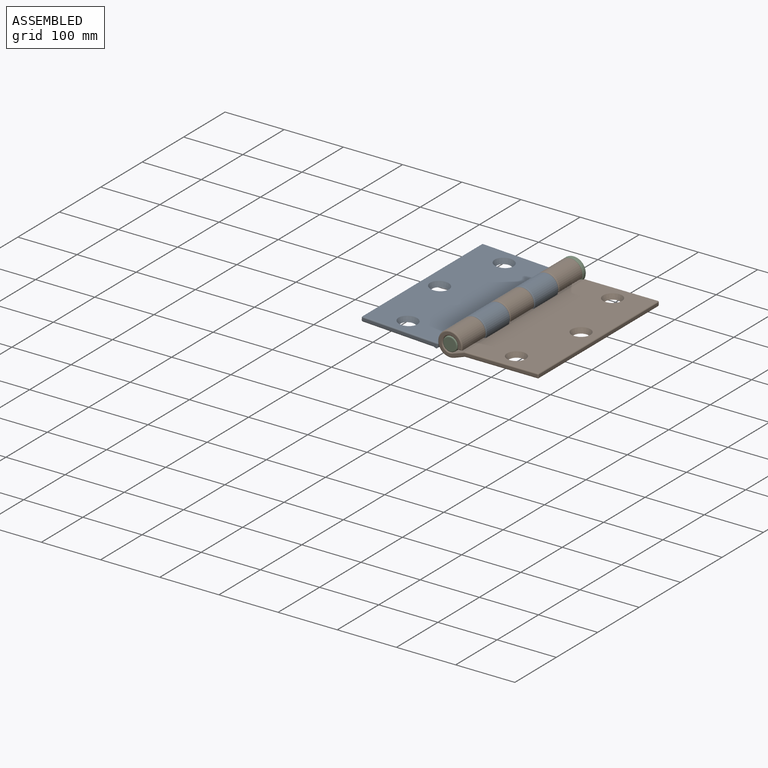
[diagram: assembled view]
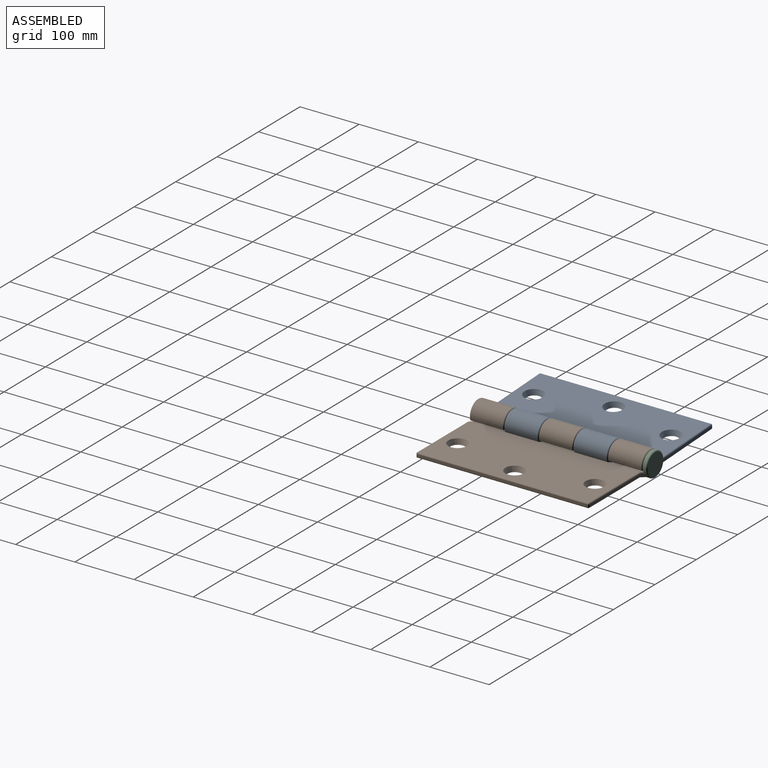
[diagram: assembled view, second angle]
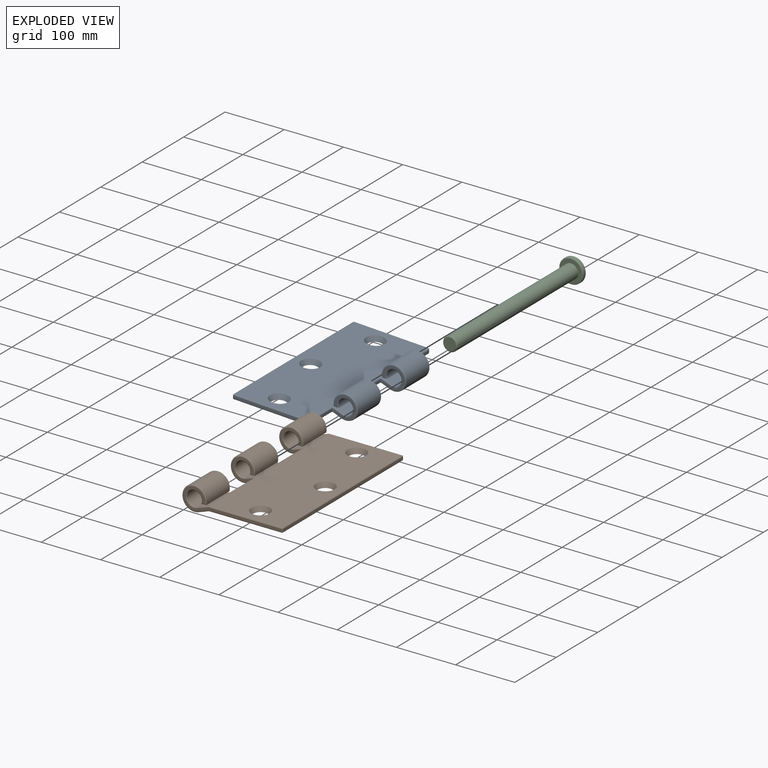
[diagram: exploded view]
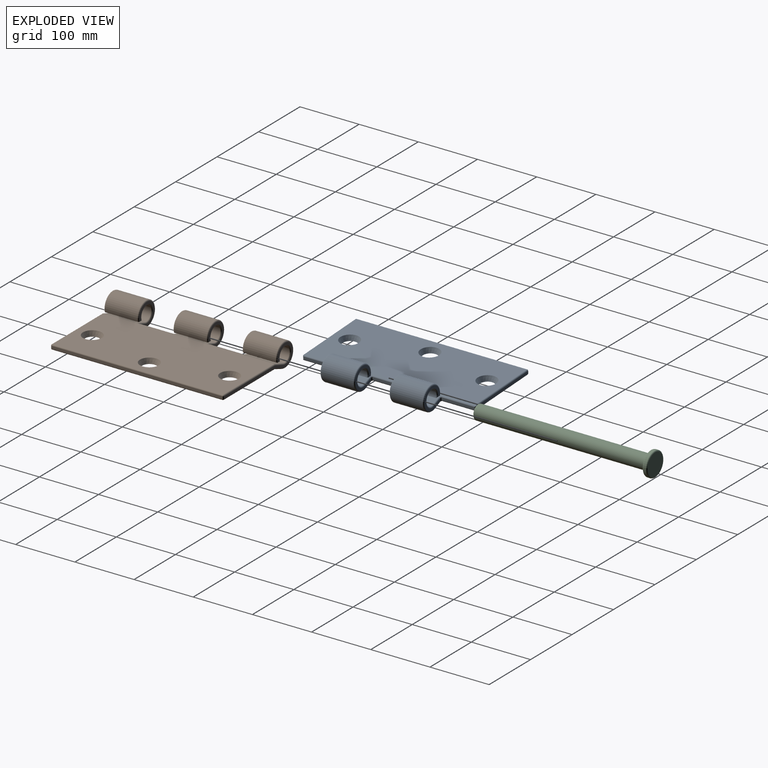
[diagram: exploded view, second angle]
ASSEMBLY  parts=3 mates=2
PART A: 74 faces, bbox 171.7x292x44.4 mm
  f0: cylinder r=12.5mm len=54.4mm, axis (0,1,0), area 3703.3mm2, adj f2,f6,f27,f61
  f1: cylinder r=12.5mm len=54.4mm, axis (0,1,0), area 3703.3mm2, adj f2,f7,f33,f43
  f2: plane 291.31x20.23mm, normal (0.32,0,0.95), area 2780.8mm2, adj f0,f1,f28,f29,f30,f31,f32,f46
  f3: plane 292x23.17mm, normal (-0.34,0,-0.94), area 2310.2mm2, adj f4,f5,f8,f9,f12,f35,f36,f37
  f4: cylinder r=20.5mm len=54.4mm, axis (0,1,0), area 5913.6mm2, adj f3,f6,f34,f54
  f5: cylinder r=20.5mm len=54.4mm, axis (0,1,0), area 5913.6mm2, adj f3,f7,f40,f42
  f6: plane 56.4x8.42mm, normal (0,0,-1), area 473.3mm2, adj f0,f4,f19,f27,f34,f55
  f7: plane 56.4x8.42mm, normal (0,0,-1), area 473.3mm2, adj f1,f5,f20,f33,f40,f41
  f8: plane 125x6.59mm, normal (0,-1,0), area 510.3mm2, adj f3,f45,f50,f51,f57,f62
  f9: plane 125x6.59mm, normal (0,1,0), area 510.3mm2, adj f3,f53,f64,f69,f71,f72
  f10: plane 288x122.68mm, normal (0,0,1), area 32917.7mm2, adj f13,f14,f15,f62,f63,f67,f71
  f11: plane 288x4mm, normal (-1,0,0), area 1152mm2, adj f51,f52,f63,f64
  f12: plane 288x123mm, normal (0,0,-1), area 34066.8mm2, adj f3,f13,f14,f15,f45,f52,f53
  f13: cone r=12mm half-angle=26.6deg, axis (0,0,1), area 786.8mm2, adj f10,f12
  f14: cone r=12mm half-angle=26.6deg, axis (0,0,1), area 786.8mm2, adj f10,f12
  f15: cone r=12mm half-angle=26.6deg, axis (0,0,1), area 786.8mm2, adj f10,f12
  f16: plane 37x37mm, normal (0,-1,0), area 398.4mm2, adj f23,f41,f42,f43,f44,f46
  f17: plane 54.4x3.82mm, normal (1,0,0), area 207.6mm2, adj f23,f50,f56,f57
  f18: plane 54.4x3.82mm, normal (1,0,0), area 207.6mm2, adj f24,f25,f30,f37
  f19: plane 37x37mm, normal (0,-1,0), area 406.7mm2, adj f6,f24,f27,f28,f34,f35
  f20: plane 37x37mm, normal (0,1,0), area 406.7mm2, adj f7,f25,f32,f33,f39,f40
  f21: plane 37x37mm, normal (0,1,0), area 398.4mm2, adj f26,f54,f55,f60,f61,f66
  f22: plane 54.4x3.82mm, normal (1,0,0), area 207.6mm2, adj f26,f69,f72,f73
  f23: cylinder r=2mm len=5.25mm, axis (0,0,-1), area 12.1mm2, adj f16,f17,f47,f49
  f24: cylinder r=2mm len=5.25mm, axis (0,0,-1), area 12.1mm2, adj f18,f19,f29,f36
  f25: cylinder r=2mm len=5.25mm, axis (0,0,1), area 12.1mm2, adj f18,f20,f31,f38
  f26: cylinder r=2mm len=5.25mm, axis (0,0,1), area 12.1mm2, adj f21,f22,f65,f70
  f27: torus R=14.5mm, axis (0,-1,0), area 225.3mm2, adj f0,f6,f19,f28
  f28: cylinder r=2mm len=14.54mm, axis (0.95,0,-0.32), area 46.1mm2, adj f2,f19,f27,f29
  f29: bspline ~4.7x4.17mm, area 12.7mm2, adj f2,f24,f28,f30
  f30: cylinder r=2mm len=54.4mm, axis (0,1,0), area 135.9mm2, adj f2,f18,f29,f31
  f31: bspline ~4.7x4mm, area 12.7mm2, adj f2,f25,f30,f32
  f32: cylinder r=2mm len=14.54mm, axis (-0.95,0,0.32), area 46.1mm2, adj f2,f20,f31,f33
  f33: torus R=14.5mm, axis (0,-1,0), area 225.3mm2, adj f1,f7,f20,f32
  f34: torus R=18.5mm, axis (0,-1,0), area 330mm2, adj f4,f6,f19,f35
  f35: cylinder r=2mm len=12.94mm, axis (-0.94,0,0.34), area 40.9mm2, adj f3,f19,f34,f36
  f36: bspline ~5.02x4.17mm, area 15.5mm2, adj f3,f24,f35,f37
  f37: cylinder r=2mm len=54.4mm, axis (0,-1,0), area 208.3mm2, adj f3,f18,f36,f38
  f38: bspline ~5.02x4mm, area 15.5mm2, adj f3,f25,f37,f39
  f39: cylinder r=2mm len=12.94mm, axis (0.94,0,-0.34), area 40.9mm2, adj f3,f20,f38,f40
  f40: torus R=18.5mm, axis (0,-1,0), area 330mm2, adj f5,f7,f20,f39
  f41: cylinder r=2mm len=8.42mm, axis (-1,0,0), area 21.4mm2, adj f7,f16,f42,f43
  f42: torus R=18.5mm, axis (0,-1,0), area 327.6mm2, adj f5,f16,f41,f44
  f43: torus R=14.5mm, axis (0,-1,0), area 222.9mm2, adj f1,f16,f41,f46
  f44: cylinder r=2mm len=12.94mm, axis (-0.94,0,0.34), area 40.9mm2, adj f3,f16,f42,f47
  f45: cylinder r=2mm len=123mm, axis (-1,0,0), area 380mm2, adj f3,f8,f12,f48
  f46: cylinder r=2mm len=14.54mm, axis (0.95,0,-0.32), area 46.1mm2, adj f2,f16,f43,f49
  f47: bspline ~5.02x4.17mm, area 15.5mm2, adj f3,f23,f44,f50
  f48: sphere r=2mm, area 6.3mm2, adj f45,f51,f52
  f49: bspline ~4.7x4.17mm, area 12.7mm2, adj f2,f23,f46,f56
  f50: cylinder r=2mm len=56.4mm, axis (0,-1,0), area 213.7mm2, adj f3,f8,f17,f47,f57
  f51: cylinder r=2mm len=4mm, axis (0,0,1), area 12.6mm2, adj f8,f11,f48,f58
  f52: cylinder r=2mm len=288mm, axis (0,1,0), area 904.8mm2, adj f11,f12,f48,f59
  f53: cylinder r=2mm len=123mm, axis (1,0,0), area 380mm2, adj f3,f9,f12,f59
  f54: torus R=18.5mm, axis (0,-1,0), area 327.6mm2, adj f4,f21,f55,f60
  f55: cylinder r=2mm len=8.42mm, axis (1,0,0), area 21.4mm2, adj f6,f21,f54,f61
  f56: cylinder r=2mm len=56.15mm, axis (0,1,0), area 138.5mm2, adj f2,f17,f49,f57,f62
  f57: cylinder r=2mm len=7.56mm, axis (0,0,1), area 19.3mm2, adj f8,f17,f50,f56,f62
  f58: sphere r=2mm, area 6.3mm2, adj f51,f62,f63
  f59: sphere r=2mm, area 6.3mm2, adj f52,f53,f64
  f60: cylinder r=2mm len=12.94mm, axis (0.94,0,-0.34), area 40.9mm2, adj f3,f21,f54,f65
  f61: torus R=14.5mm, axis (0,-1,0), area 222.9mm2, adj f0,f21,f55,f66
  f62: cylinder r=2mm len=125.97mm, axis (1,0,0), area 391.1mm2, adj f2,f8,f10,f56,f57,f58,f67
  f63: cylinder r=2mm len=288mm, axis (0,1,0), area 904.8mm2, adj f10,f11,f58,f68
  f64: cylinder r=2mm len=4mm, axis (0,0,-1), area 12.6mm2, adj f9,f11,f59,f68
  f65: bspline ~5.02x4mm, area 15.5mm2, adj f3,f26,f60,f69
  f66: cylinder r=2mm len=14.54mm, axis (-0.95,0,0.32), area 46.1mm2, adj f2,f21,f61,f70
  f67: cylinder r=2mm len=289.27mm, axis (0,-1,0), area 186mm2, adj f2,f10,f62,f71
  f68: sphere r=2mm, area 6.3mm2, adj f63,f64,f71
  f69: cylinder r=2mm len=56.4mm, axis (0,-1,0), area 213.7mm2, adj f3,f9,f22,f65,f72
  f70: bspline ~4.7x4mm, area 12.7mm2, adj f2,f26,f66,f73
  f71: cylinder r=2mm len=125.97mm, axis (-1,0,0), area 391.1mm2, adj f2,f9,f10,f67,f68,f72,f73
  f72: cylinder r=2mm len=7.56mm, axis (0,0,-1), area 19.3mm2, adj f9,f22,f69,f71,f73
  f73: cylinder r=2mm len=56.15mm, axis (0,1,0), area 138.5mm2, adj f2,f22,f70,f71,f72
PART B: 69 faces, bbox 171.7x292x44.4 mm
  f0: cylinder r=12.5mm len=54.4mm, axis (0,1,0), area 3703.3mm2, adj f4,f7,f27,f36
  f1: cylinder r=12.5mm len=54.4mm, axis (0,1,0), area 3703.3mm2, adj f5,f7,f35,f67
  f2: cylinder r=20.5mm len=54.4mm, axis (0,1,0), area 5913.6mm2, adj f4,f11,f25,f39
  f3: cylinder r=20.5mm len=54.4mm, axis (0,1,0), area 5913.6mm2, adj f5,f11,f32,f53
  f4: plane 56.4x8.42mm, normal (0,0,-1), area 473.3mm2, adj f0,f2,f24,f25,f27,f37
  f5: plane 56.4x8.42mm, normal (0,0,-1), area 473.3mm2, adj f1,f3,f21,f34,f53,f67
  f6: cylinder r=12.5mm len=54.4mm, axis (0,1,0), area 3703.3mm2, adj f7,f13,f41,f66
  f7: plane 288x20.54mm, normal (-0.32,0,0.95), area 3970.7mm2, adj f0,f1,f6,f8,f19,f29,f31,f33
  f8: plane 288x123mm, normal (0,0,1), area 33011.3mm2, adj f7,f16,f17,f18,f40,f47,f48
  f9: plane 288x4mm, normal (1,0,0), area 1152mm2, adj f46,f47,f51,f52
  f10: plane 288x123mm, normal (0,0,-1), area 34066.8mm2, adj f11,f16,f17,f18,f45,f51,f56
  f11: plane 288x17.59mm, normal (0.34,0,-0.94), area 3224.6mm2, adj f2,f3,f10,f12,f26,f28,f30,f42
  f12: cylinder r=20.5mm len=54.4mm, axis (0,1,0), area 5820.5mm2, adj f11,f60,f61,f62
  f13: plane 56.4x6.8mm, normal (0,0,-1), area 382.5mm2, adj f6,f15,f41,f60,f62,f65
  f14: plane 166x37mm, normal (0,-1,0), area 913.5mm2, adj f36,f37,f38,f39,f40,f42,f45,f46
  f15: plane 166x37mm, normal (0,1,0), area 921.7mm2, adj f13,f41,f44,f48,f52,f56,f58,f60
  f16: cone r=12mm half-angle=26.6deg, axis (0,0,1), area 786.8mm2, adj f8,f10
  f17: cone r=12mm half-angle=26.6deg, axis (0,0,1), area 786.8mm2, adj f8,f10
  f18: cone r=12mm half-angle=26.6deg, axis (0,0,1), area 786.8mm2, adj f8,f10
  f19: plane 62.4x5.26mm, normal (-1,0,0), area 308.8mm2, adj f7,f20,f21,f57,f64,f68
  f20: plane 39.12x37mm, normal (0,-1,0), area 406.2mm2, adj f19,f57,f59,f61,f64,f65,f66
  f21: plane 39.12x37mm, normal (0,1,0), area 414.5mm2, adj f5,f19,f53,f55,f57,f67,f68
  f22: plane 58.61x3.82mm, normal (-1,0,0), area 222.9mm2, adj f23,f24,f28,f29,f31,f33
  f23: plane 39.12x37mm, normal (0,-1,0), area 406.2mm2, adj f22,f28,f30,f32,f33,f34,f35
  f24: plane 39.12x37mm, normal (0,1,0), area 414.5mm2, adj f4,f22,f25,f26,f27,f28,f29
  f25: torus R=18.5mm, axis (0,1,0), area 330mm2, adj f2,f4,f24,f26
  f26: cylinder r=2mm len=16.94mm, axis (0.94,0,0.34), area 50.3mm2, adj f11,f24,f25,f28
  f27: torus R=14.5mm, axis (0,1,0), area 225.3mm2, adj f0,f4,f24,f29
  f28: cylinder r=2mm len=62.4mm, axis (0,1,0), area 228.2mm2, adj f11,f22,f23,f24,f26,f30
  f29: cylinder r=2mm len=18.54mm, axis (-0.95,0,-0.32), area 55.3mm2, adj f7,f22,f24,f27,f31
  f30: cylinder r=2mm len=16.94mm, axis (-0.94,0,-0.34), area 50.3mm2, adj f11,f23,f28,f32
  f31: cylinder r=2mm len=62.4mm, axis (0,-1,0), area 150.4mm2, adj f7,f22,f29,f33
  f32: torus R=18.5mm, axis (0,1,0), area 327.6mm2, adj f3,f23,f30,f34
  f33: cylinder r=2mm len=18.54mm, axis (0.95,0,0.32), area 55.3mm2, adj f7,f22,f23,f31,f35
  f34: cylinder r=2mm len=8.42mm, axis (-1,0,0), area 21.4mm2, adj f5,f23,f32,f35
  f35: torus R=14.5mm, axis (0,1,0), area 222.9mm2, adj f1,f23,f33,f34
  f36: torus R=14.5mm, axis (0,-1,0), area 222.9mm2, adj f0,f14,f37,f38
  f37: cylinder r=2mm len=8.42mm, axis (1,0,0), area 21.4mm2, adj f4,f14,f36,f39
  f38: cylinder r=2mm len=21.18mm, axis (-0.95,0,-0.32), area 67.7mm2, adj f7,f14,f36,f40
  f39: torus R=18.5mm, axis (0,-1,0), area 327.6mm2, adj f2,f14,f37,f42
  f40: cylinder r=2mm len=123mm, axis (-1,0,0), area 386mm2, adj f8,f14,f38,f43
  f41: torus R=14.5mm, axis (0,-1,0), area 225.3mm2, adj f6,f13,f15,f44
  f42: cylinder r=2mm len=18.59mm, axis (0.94,0,0.34), area 59.1mm2, adj f11,f14,f39,f45
  f43: sphere r=2mm, area 6.3mm2, adj f40,f46,f47
  f44: cylinder r=2mm len=21.18mm, axis (0.95,0,0.32), area 67.7mm2, adj f7,f15,f41,f48
  f45: cylinder r=2mm len=123.35mm, axis (1,0,0), area 386.8mm2, adj f10,f14,f42,f49
  f46: cylinder r=2mm len=4mm, axis (0,0,1), area 12.6mm2, adj f9,f14,f43,f49
  f47: cylinder r=2mm len=288mm, axis (0,1,0), area 904.8mm2, adj f8,f9,f43,f50
  f48: cylinder r=2mm len=123mm, axis (1,0,0), area 386mm2, adj f8,f15,f44,f50
  f49: sphere r=2mm, area 6.3mm2, adj f45,f46,f51
  f50: sphere r=2mm, area 6.3mm2, adj f47,f48,f52
  f51: cylinder r=2mm len=288mm, axis (0,1,0), area 904.8mm2, adj f9,f10,f49,f54
  f52: cylinder r=2mm len=4mm, axis (0,0,-1), area 12.6mm2, adj f9,f15,f50,f54
  f53: torus R=18.5mm, axis (0,1,0), area 330mm2, adj f3,f5,f21,f55
  f54: sphere r=2mm, area 6.3mm2, adj f51,f52,f56
  f55: cylinder r=2mm len=16.94mm, axis (0.94,0,0.34), area 50.3mm2, adj f11,f21,f53,f57
  f56: cylinder r=2mm len=123.35mm, axis (-1,0,0), area 386.8mm2, adj f10,f15,f54,f58
  f57: cylinder r=2mm len=62.4mm, axis (0,1,0), area 228.2mm2, adj f11,f19,f20,f21,f55,f59
  f58: cylinder r=2mm len=18.59mm, axis (-0.94,0,-0.34), area 59.1mm2, adj f11,f15,f56,f60
  f59: cylinder r=2mm len=16.94mm, axis (-0.94,0,-0.34), area 50.3mm2, adj f11,f20,f57,f61
  f60: torus R=18.5mm, axis (0,-1,0), area 328.3mm2, adj f12,f13,f15,f58,f62
  f61: torus R=18.5mm, axis (0,1,0), area 324.2mm2, adj f12,f20,f59,f63
  f62: cylinder r=2mm len=56.35mm, axis (0,1,0), area 156.4mm2, adj f12,f13,f60,f63
  f63: sphere r=2mm, area 5.6mm2, adj f61,f62,f65
  f64: cylinder r=2mm len=17.18mm, axis (0.95,0,0.32), area 54mm2, adj f7,f19,f20,f66
  f65: cylinder r=2mm len=6.8mm, axis (-1,0,0), area 18.1mm2, adj f13,f20,f63,f66
  f66: torus R=14.5mm, axis (0,1,0), area 222.9mm2, adj f6,f20,f64,f65
  f67: torus R=14.5mm, axis (0,1,0), area 225.3mm2, adj f1,f5,f21,f68
  f68: cylinder r=2mm len=17.18mm, axis (-0.95,0,-0.32), area 54mm2, adj f7,f19,f21,f67
PART C: 8 faces, bbox 44.4x300x44.4 mm
  f0: cylinder r=12.25mm len=290mm, axis (0,1,0), area 22321mm2, adj f4,f7
  f1: plane 20.5x20.5mm, normal (0,-1,0), area 330.1mm2, adj f7
  f2: cylinder r=20.5mm len=41mm, axis (0,-1,0), area 515.2mm2, adj f5,f6
  f3: plane 37x37mm, normal (0,1,0), area 1075.2mm2, adj f6
  f4: plane 37x37mm, normal (0,-1,0), area 603.8mm2, adj f0,f5
  f5: torus R=18.5mm, axis (0,1,0), area 390.3mm2, adj f2,f4
  f6: torus R=18.5mm, axis (0,1,0), area 390.3mm2, adj f2,f3
  f7: torus R=10.25mm, axis (0,1,0), area 227.5mm2, adj f0,f1
PLACE A rot(axis=(0,1,0),3deg) t=(-0.23,0.01,1.29)mm
PLACE B at identity
PLACE C at identity
MATE slider C.f0 <-> B.f0  axis (0,-1,0) through (24.5,-292,5)mm
MATE cylindrical A.f0 <-> C.f0  axis (0,-1,0) through (24.5,-233,5)mm
